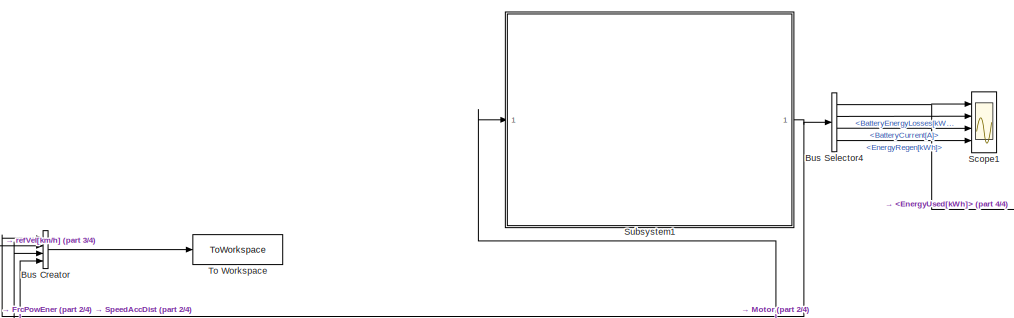
[diagram: root canvas - part 1/4, top center region]
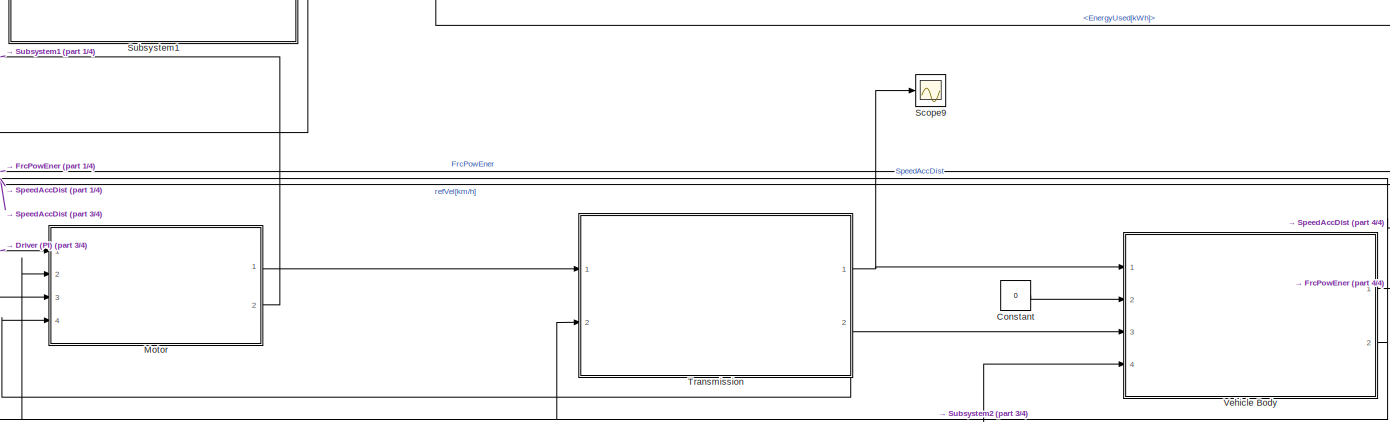
[diagram: root canvas - part 2/4, central region]
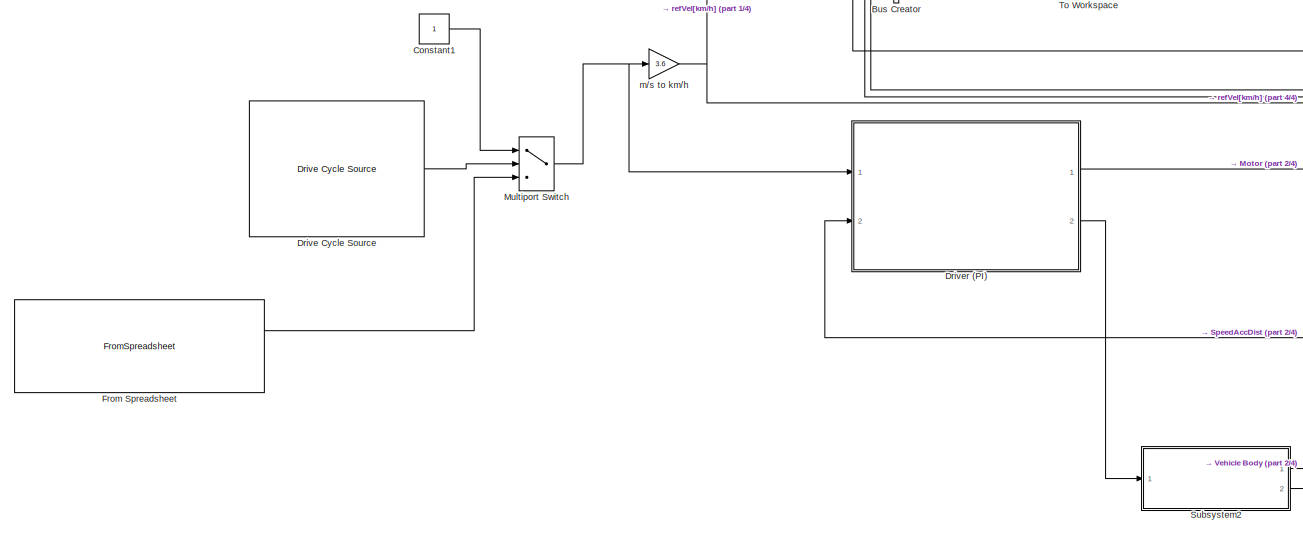
[diagram: root canvas - part 3/4, bottom left region]
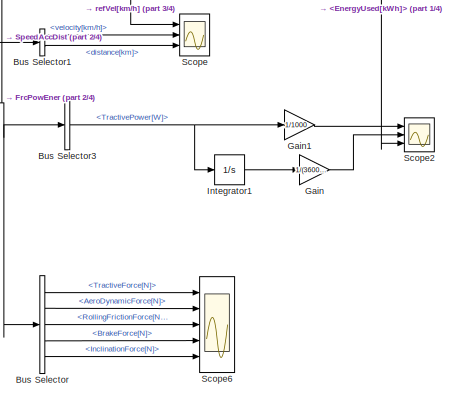
[diagram: root canvas - part 4/4, bottom right region]
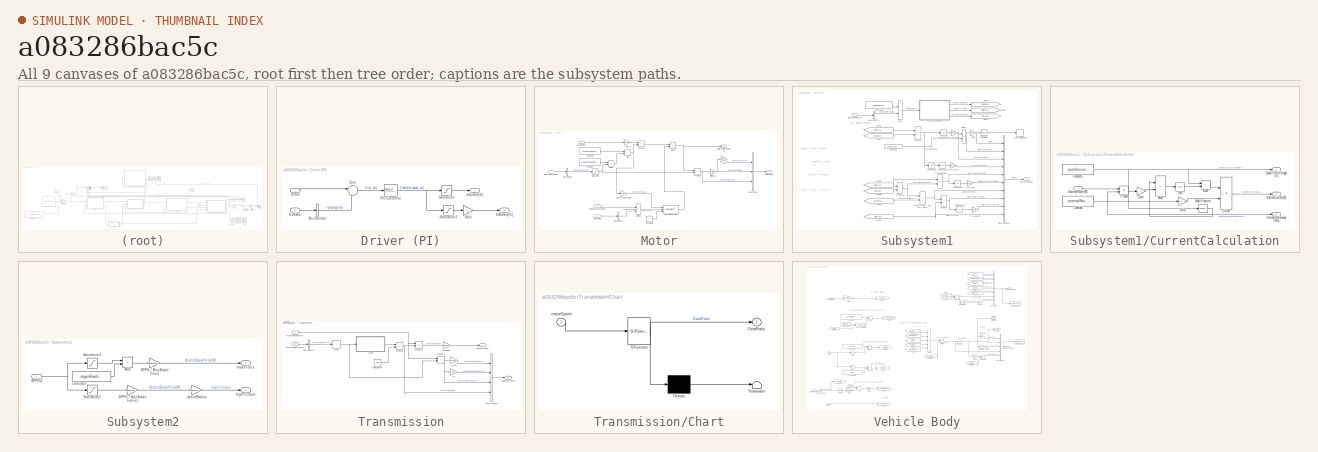
[diagram: thumbnail index - all 9 canvases of the model, root first then tree order]
MODEL slx_a083286bac5c
KIND model
CONFIG AbsTol = auto
CONFIG EnableMultiTasking = off
CONFIG FixedStep = 0.5
CONFIG MaxStep = auto
CONFIG MinStep = auto
CONFIG RelTol = 1e-3
CONFIG SampleTimeConstraint = Unconstrained
CONFIG SolverName = VariableStepAuto
CONFIG StartTime = 0.0
CONFIG StopTime = 600
WORKSPACE source: mxarray member
WORKSPACE AccessoryLoad = 0
WORKSPACE Af = 1.8
WORKSPACE C0 = 0.02
WORKSPACE Cd = 0.48
WORKSPACE airDensity = 1.225
WORKSPACE beta = 0
WORKSPACE energyCapacity = 30
WORKSPACE g = 9.81
WORKSPACE gearboxEfficiency = 90
WORKSPACE internalResistance = 0.05
WORKSPACE m = 840
WORKSPACE maxBrakeForce = 2000
WORKSPACE motorEfficiency = 90
WORKSPACE motorMaxPower = 40000
WORKSPACE motorMaxTorque = 83
WORKSPACE openCircuitVoltage = 140
WORKSPACE regenFraction = 1
WORKSPACE wheelRadius = 0.29
WORKSPACE windVel = 0
BLOCK [BusCreator] Bus Creator
  DisplayOption = bar
  InheritFromInputs = on
  Inputs = 4
  Ports = [4, 1]
BLOCK [BusSelector] Bus Selector
  OutputSignals = TractiveForce[N],AeroDynamicForce[N],RollingFrictionForce[N],BrakeForce[N],InclinationForce[N]
  Ports = [1, 5]
BLOCK [BusSelector] Bus Selector1
  OutputSignals = velocity[km/h],distance[km]
  Ports = [1, 2]
BLOCK [BusSelector] Bus Selector3
  OutputSignals = TractivePower[W]
  Ports = [1, 1]
BLOCK [BusSelector] Bus Selector4
  OutputSignals = EnergyUsed[kWh],BatteryEnergyLosses[kWh],BatteryCurrent[A],EnergyRegen[kWh]
  Ports = [1, 4]
BLOCK [Constant] Constant
  Value = 0
BLOCK [Constant] Constant1
BLOCK [Reference] Drive Cycle Source  REF=autolibshared/Drive Cycle Source
  AttributesFormatString = %<cycleVar> (%<tfinal>)
  Ports = [0, 1]
  SourceBlock = autolibshared/Drive Cycle Source
  SourceProductBaseCode = PW,MT,UV,VE,VP
  SourceType = Drive Cycle Source
BLOCK [SubSystem] Driver (PI)
  Ports = [2, 2]
  RequestExecContextInheritance = off
BLOCK [BusSelector] Driver (PI)/Bus Selector
  OutputSignals = velocity[m/s]
  Ports = [1, 1]
BLOCK [Gain] Driver (PI)/Gain
  Gain = -1
BLOCK [Reference] Driver (PI)/PID Controller  REF=pid_lib/PID Controller
  Ports = [1, 1]
  SourceBlock = pid_lib/PID Controller
  SourceProductBaseCode = SL
  SourceType = PID 1dof
BLOCK [Saturate] Driver (PI)/Saturation
  LowerLimit = 0
  UpperLimit = 100
BLOCK [Saturate] Driver (PI)/Saturation1
  LowerLimit = -100
  UpperLimit = 0
BLOCK [Sum] Driver (PI)/Sum
  Inputs = |+-
  Ports = [2, 1]
BLOCK [Outport] Driver (PI)/accCmnd[%]
BLOCK [Outport] Driver (PI)/brkCmnd[%]
  Port = 2
BLOCK [Inport] Driver (PI)/fedbkVel
  Port = 2
BLOCK [Inport] Driver (PI)/refVel
BLOCK [FromSpreadsheet] From Spreadsheet
  ExtrapolationAfterLastDataPoint = Hold last value
  FileName = SpeedInputDrivecyle.xlsx
  Ports = [0, 2]
  SheetName = Sheet2
BLOCK [Gain] Gain
  Gain = 1/(3600*1000)
BLOCK [Gain] Gain1
  Gain = 1/1000
BLOCK [Integrator] Integrator1
  Ports = [1, 1]
BLOCK [SubSystem] Motor
  Ports = [4, 2]
  RequestExecContextInheritance = off
BLOCK [Gain] Motor/% to 0-1
  Gain = 1/100
BLOCK [Gain] Motor/1-eff
  Gain = (100-motorEfficiency)/100
BLOCK [BusCreator] Motor/Bus Creator
  DisplayOption = bar
  InheritFromInputs = on
  Inputs = 3
  Ports = [3, 1]
BLOCK [BusSelector] Motor/Bus Selector
  OutputSignals = motorSpeed[rad/s]
  Ports = [1, 1]
BLOCK [BusSelector] Motor/Bus Selector1
  OutputSignals = outputGearRatio
  Ports = [1, 1]
BLOCK [Constant] Motor/Constant
  Value = motorMaxPower
BLOCK [Constant] Motor/Constant1
  Value = motorMaxTorque
BLOCK [Constant] Motor/Constant2
  Value = 0
BLOCK [Product] Motor/Divide
  Inputs = */
  Ports = [2, 1]
BLOCK [Product] Motor/Divide1
  Inputs = */
  Ports = [2, 1]
BLOCK [Inport] Motor/GearRatio
  Port = 4
BLOCK [MinMax] Motor/Min
  Inputs = 2
  Ports = [2, 1]
BLOCK [Sum] Motor/Minus
  IconShape = rectangular
  Inputs = +-
  Ports = [2, 1]
BLOCK [Product] Motor/Product
  Ports = [2, 1]
BLOCK [Product] Motor/Product1
  Ports = [2, 1]
BLOCK [Inport] Motor/RegenBrakeTorque
  Port = 3
BLOCK [Saturate] Motor/Saturation
  LowerLimit = 0.00001
  UpperLimit = inf
BLOCK [Reference] Motor/Saturation Dynamic  REF=simulink/Discontinuities/Saturation
Dynamic
  Ports = [3, 1]
  SourceBlock = simulink/Discontinuities/Saturation\nDynamic
  SourceProductBaseCode = SL
  SourceType = Saturation Dynamic
BLOCK [Inport] Motor/accCmnd[%]
BLOCK [Gain] Motor/efficiency
  Gain = 100/motorEfficiency
BLOCK [Gain] Motor/maxTorqueFraction
  Gain = 0.5
BLOCK [Outport] Motor/motorNetTorque[Nm]
BLOCK [Outport] Motor/motorOutput
  Port = 2
BLOCK [Inport] Motor/motorSpeed[rad//s]
  Port = 2
BLOCK [MultiPortSwitch] Multiport Switch
  InputSameDT = off
  Inputs = 2
  Ports = [3, 1]
  SaturateOnIntegerOverflow = off
BLOCK [Scope] Scope
  Floating = off
  NumInputPorts = 3
  Ports = [3]
  ScopeSpecificationString = Simulink.scopes.TimeScopeBlockCfg('CurrentConfiguration', extmgr.ConfigurationSet(extmgr.Configuration('Core','General UI',true),extmgr.Configuration('Core','Source UI',true),extmgr.Configuration('Sources','WiredSimulink',true),extmgr.Configuration('Visuals','Time Domain',true,'SerializedDisplays',{struct('MinYLimReal','-16.96263','MaxYLimReal','148.32918','YLabelReal','','MinYLimMag','0.00000','M...<+1474ch>
BLOCK [Scope] Scope1
  Floating = off
  NumInputPorts = 4
  Ports = [4]
  ScopeSpecificationString = Simulink.scopes.TimeScopeBlockCfg('CurrentConfiguration', extmgr.ConfigurationSet(extmgr.Configuration('Core','General UI',true),extmgr.Configuration('Core','Source UI',true),extmgr.Configuration('Sources','WiredSimulink',true,'DataLoggingVariableName','ScopeData1'),extmgr.Configuration('Visuals','Time Domain',true,'SerializedDisplays',{struct('MinYLimReal','0.24771','MaxYLimReal','5.66544','YLabe...<+1544ch>
BLOCK [Scope] Scope2
  Floating = off
  NumInputPorts = 3
  Ports = [3]
  ScopeSpecificationString = Simulink.scopes.TimeScopeBlockCfg('CurrentConfiguration', extmgr.ConfigurationSet(extmgr.Configuration('Core','General UI',true),extmgr.Configuration('Core','Source UI',true),extmgr.Configuration('Sources','WiredSimulink',true,'DataLoggingVariableName','ScopeData1'),extmgr.Configuration('Visuals','Time Domain',true,'SerializedDisplays',{struct('MinYLimReal','-40.95','MaxYLimReal','44.55','YLabelRe...<+1452ch>
BLOCK [Scope] Scope6
  Floating = off
  NumInputPorts = 5
  Ports = [5]
  ScopeSpecificationString = Simulink.scopes.TimeScopeBlockCfg('CurrentConfiguration', extmgr.ConfigurationSet(extmgr.Configuration('Core','General UI',true),extmgr.Configuration('Core','Source UI',true),extmgr.Configuration('Sources','WiredSimulink',true,'DataLoggingVariableName','ScopeData6'),extmgr.Configuration('Visuals','Time Domain',true,'SerializedDisplays',{struct('MinYLimReal','-460.65236','MaxYLimReal','4145.87128',...<+1554ch>
BLOCK [Scope] Scope9
  Floating = off
  NumInputPorts = 1
  Ports = [1]
  ScopeSpecificationString = Simulink.scopes.TimeScopeBlockCfg('CurrentConfiguration', extmgr.ConfigurationSet(extmgr.Configuration('Core','General UI',true),extmgr.Configuration('Core','Source UI',true),extmgr.Configuration('Sources','WiredSimulink',true,'DataLoggingVariableName','ScopeData3'),extmgr.Configuration('Visuals','Time Domain',true,'SerializedDisplays',{struct('MinYLimReal','-579.60471','MaxYLimReal','700.79749','...<+1439ch>
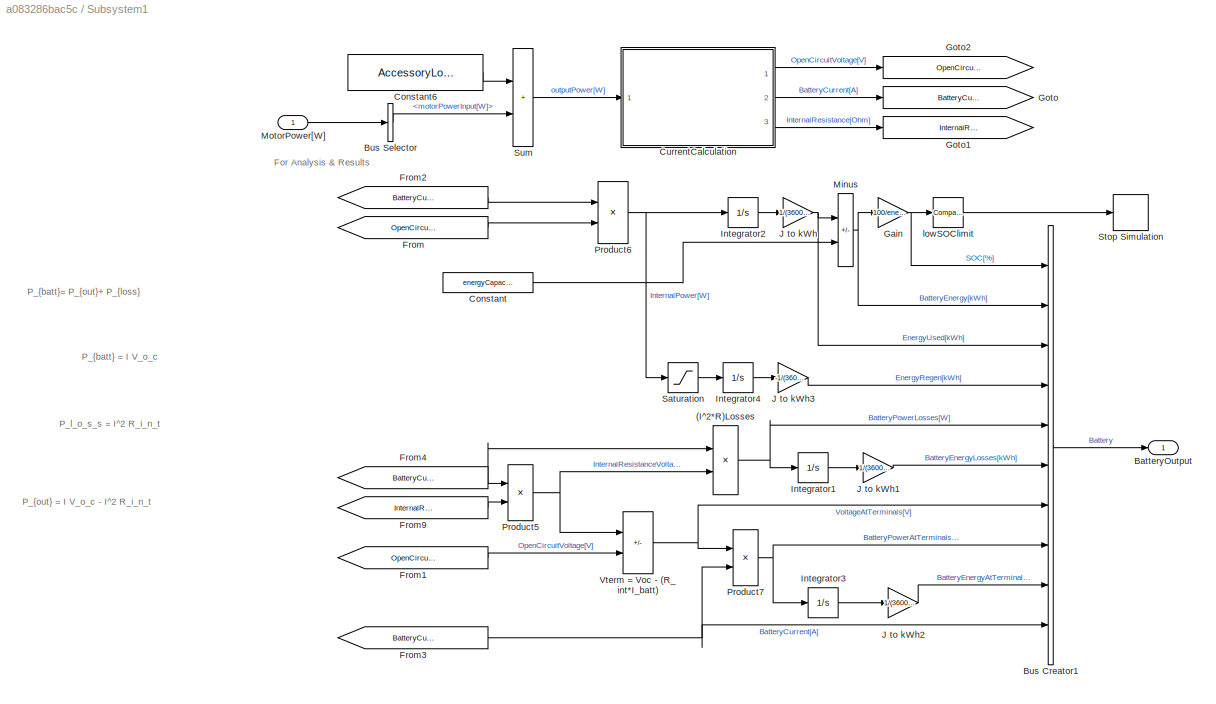
BLOCK [SubSystem] Subsystem1
  Ports = [1, 1]
  RequestExecContextInheritance = off
BLOCK [Product] Subsystem1/(I^2*R)Losses
  NameLocation = top
  Ports = [2, 1]
  RndMeth = Zero
BLOCK [Outport] Subsystem1/BatteryOutput
  VectorParamsAs1DForOutWhenUnconnected = off
BLOCK [BusCreator] Subsystem1/Bus Creator1
  DisplayOption = bar
  InheritFromInputs = on
  Inputs = 10
  Ports = [10, 1]
BLOCK [BusSelector] Subsystem1/Bus Selector
  OutputSignals = motorPowerInput[W]
  Ports = [1, 1]
BLOCK [Constant] Subsystem1/Constant
  Value = energyCapacity
BLOCK [Constant] Subsystem1/Constant6
  Value = AccessoryLoad
BLOCK [SubSystem] Subsystem1/CurrentCalculation
  Ports = [1, 3]
  RequestExecContextInheritance = off
BLOCK [Sum] Subsystem1/CurrentCalculation/Add
  IconShape = rectangular
  Inputs = +-
  Ports = [2, 1]
BLOCK [Sum] Subsystem1/CurrentCalculation/Add1
  IconShape = rectangular
  Inputs = +-
  Ports = [2, 1]
BLOCK [Outport] Subsystem1/CurrentCalculation/BatteryCurrent[A]
  Port = 2
  VectorParamsAs1DForOutWhenUnconnected = off
BLOCK [Inport] Subsystem1/CurrentCalculation/BatteryPower[W]
BLOCK [Constant] Subsystem1/CurrentCalculation/Constant
  Value = internalResistance
BLOCK [Constant] Subsystem1/CurrentCalculation/Constant1
  Value = openCircuitVoltage
BLOCK [Product] Subsystem1/CurrentCalculation/Divide
  Inputs = */
  Ports = [2, 1]
BLOCK [Gain] Subsystem1/CurrentCalculation/Gain
  Gain = 4
BLOCK [Gain] Subsystem1/CurrentCalculation/Gain1
  Gain = 2
BLOCK [Outport] Subsystem1/CurrentCalculation/InternalResistance[Ohm]
  Port = 3
  VectorParamsAs1DForOutWhenUnconnected = off
BLOCK [Math] Subsystem1/CurrentCalculation/Math Function
  Operator = square
  Ports = [1, 1]
  SignedPower = on
BLOCK [Outport] Subsystem1/CurrentCalculation/OpenCircuitVoltage[V]
  VectorParamsAs1DForOutWhenUnconnected = off
BLOCK [Product] Subsystem1/CurrentCalculation/Product
  Ports = [2, 1]
  RndMeth = Zero
BLOCK [Sqrt] Subsystem1/CurrentCalculation/Sqrt
BLOCK [From] Subsystem1/From
  GotoTag = OpenCircuitVoltage_V
BLOCK [From] Subsystem1/From1
  GotoTag = OpenCircuitVoltage_V
BLOCK [From] Subsystem1/From2
  GotoTag = BatteryCurrent_A
BLOCK [From] Subsystem1/From3
  GotoTag = BatteryCurrent_A
BLOCK [From] Subsystem1/From4
  GotoTag = BatteryCurrent_A
BLOCK [From] Subsystem1/From9
  GotoTag = InternalResistance_Ohm
BLOCK [Gain] Subsystem1/Gain
  Gain = 100/energyCapacity
BLOCK [Goto] Subsystem1/Goto
  GotoTag = BatteryCurrent_A
BLOCK [Goto] Subsystem1/Goto1
  GotoTag = InternalResistance_Ohm
BLOCK [Goto] Subsystem1/Goto2
  GotoTag = OpenCircuitVoltage_V
BLOCK [Integrator] Subsystem1/Integrator1
  Ports = [1, 1]
  ZeroCross = off
BLOCK [Integrator] Subsystem1/Integrator2
  Ports = [1, 1]
  ZeroCross = off
BLOCK [Integrator] Subsystem1/Integrator3
  Ports = [1, 1]
BLOCK [Integrator] Subsystem1/Integrator4
  Ports = [1, 1]
  ZeroCross = off
BLOCK [Gain] Subsystem1/J to kWh
  Gain = 1/(3600*1000)
BLOCK [Gain] Subsystem1/J to kWh1
  Gain = 1/(3600*1000)
BLOCK [Gain] Subsystem1/J to kWh2
  Gain = 1/(3600*1000)
BLOCK [Gain] Subsystem1/J to kWh3
  Gain = -1/(3600*1000)
BLOCK [Sum] Subsystem1/Minus
  IconShape = rectangular
  Inputs = -+
  Ports = [2, 1]
BLOCK [Inport] Subsystem1/MotorPower[W]
BLOCK [Product] Subsystem1/Product5
  Ports = [2, 1]
  RndMeth = Zero
BLOCK [Product] Subsystem1/Product6
  Ports = [2, 1]
  RndMeth = Zero
BLOCK [Product] Subsystem1/Product7
  Ports = [2, 1]
  RndMeth = Zero
BLOCK [Saturate] Subsystem1/Saturation
  LowerLimit = -inf
  UpperLimit = 0
BLOCK [Stop] Subsystem1/Stop Simulation
BLOCK [Sum] Subsystem1/Sum
  IconShape = rectangular
  Ports = [2, 1]
BLOCK [Sum] Subsystem1/Vterm = Voc - (R_int*I_batt)
  IconShape = rectangular
  Inputs = -+
  Ports = [2, 1]
BLOCK [Reference] Subsystem1/lowSOClimit  REF=simulink/Logic and Bit
Operations/Compare
To Constant
  NameLocation = top
  Ports = [1, 1]
  SourceBlock = simulink/Logic and Bit\nOperations/Compare\nTo Constant
  SourceProductBaseCode = SL
  SourceType = Compare To Constant
BLOCK [SubSystem] Subsystem2
  Ports = [1, 2]
  RequestExecContextInheritance = off
BLOCK [Sum] Subsystem2/Add
  IconShape = rectangular
  Inputs = +-
  Ports = [2, 1]
BLOCK [Gain] Subsystem2/BPP% * MaxBrakeForce
  Gain = maxBrakeForce/(regenFraction*100)
  NameLocation = top
BLOCK [Gain] Subsystem2/BPP% * MaxBrakeForce1
  Gain = maxBrakeForce/(100*regenFraction)
BLOCK [Inport] Subsystem2/BPP[%]
BLOCK [Constant] Subsystem2/Constant
  Value = regenFraction*100
BLOCK [Saturate] Subsystem2/Saturation1
  LowerLimit = 0
  UpperLimit = regenFraction*100
BLOCK [Saturate] Subsystem2/Saturation2
  LowerLimit = regenFraction*100
  UpperLimit = 100
BLOCK [Outport] Subsystem2/brakeForce
BLOCK [Outport] Subsystem2/regenTorque
  Port = 2
BLOCK [Gain] Subsystem2/wheelRadius
  Gain = wheelRadius
BLOCK [ToWorkspace] To Workspace
  FixptAsFi = on
  MaxDataPoints = inf
  Ports = [1]
  SampleTime = -1
  SaveFormat = Timeseries
  VariableName = simout
BLOCK [SubSystem] Transmission
  Ports = [2, 2]
  RequestExecContextInheritance = off
BLOCK [Gain] Transmission/1-eff
  Gain = (100-gearboxEfficiency)/100
BLOCK [BusCreator] Transmission/Bus Creator
  DisplayOption = bar
  InheritFromInputs = on
  Inputs = 4
  Ports = [4, 1]
BLOCK [BusSelector] Transmission/Bus Selector
  OutputSignals = motorSpeed[rad/s]
  Ports = [1, 1]
BLOCK [SubSystem] Transmission/Chart
  ErrorFcn = Stateflow.Translate.translate
  PermitHierarchicalResolution = ExplicitOnly
  Ports = [1, 1]
  RequestExecContextInheritance = off
  SFBlockType = Chart
  TreatAsAtomicUnit = on
BLOCK [Demux] Transmission/Chart/ Demux 
  Outputs = 1
  Ports = [1, 1]
BLOCK [S-Function] Transmission/Chart/ SFunction 
  EnableBusSupport = on
  FunctionName = sf_sfun
  PortCounts = [1 2]
  Ports = [1, 2]
  SFcnIsStateOwnerBlock = off
  SFunctionDeploymentMode = off
  Tag = Stateflow S-Function 3
BLOCK [Terminator] Transmission/Chart/ Terminator 
BLOCK [Outport] Transmission/Chart/GearRatio
BLOCK [Inport] Transmission/Chart/motorSpeed
BLOCK [Delay] Transmission/Delay
  DelayLength = 1
  InitialCondition = 0.0001
  InputPortMap = u0
  Ports = [1, 1]
BLOCK [Product] Transmission/Product
  Ports = [2, 1]
BLOCK [Product] Transmission/Product1
  Ports = [2, 1]
BLOCK [Product] Transmission/Product2
  Ports = [2, 1]
BLOCK [Constant] Transmission/driveAxleGR
  Value = 3.88
BLOCK [Gain] Transmission/eff
  Gain = gearboxEfficiency
BLOCK [Gain] Transmission/efficiency
  Gain = gearboxEfficiency/100
BLOCK [Outport] Transmission/gearboxOutput
  Port = 2
BLOCK [Inport] Transmission/motorSpeed[rad//s]
  Port = 2
BLOCK [Inport] Transmission/motorTorque[Nm]
BLOCK [Outport] Transmission/outputTorque
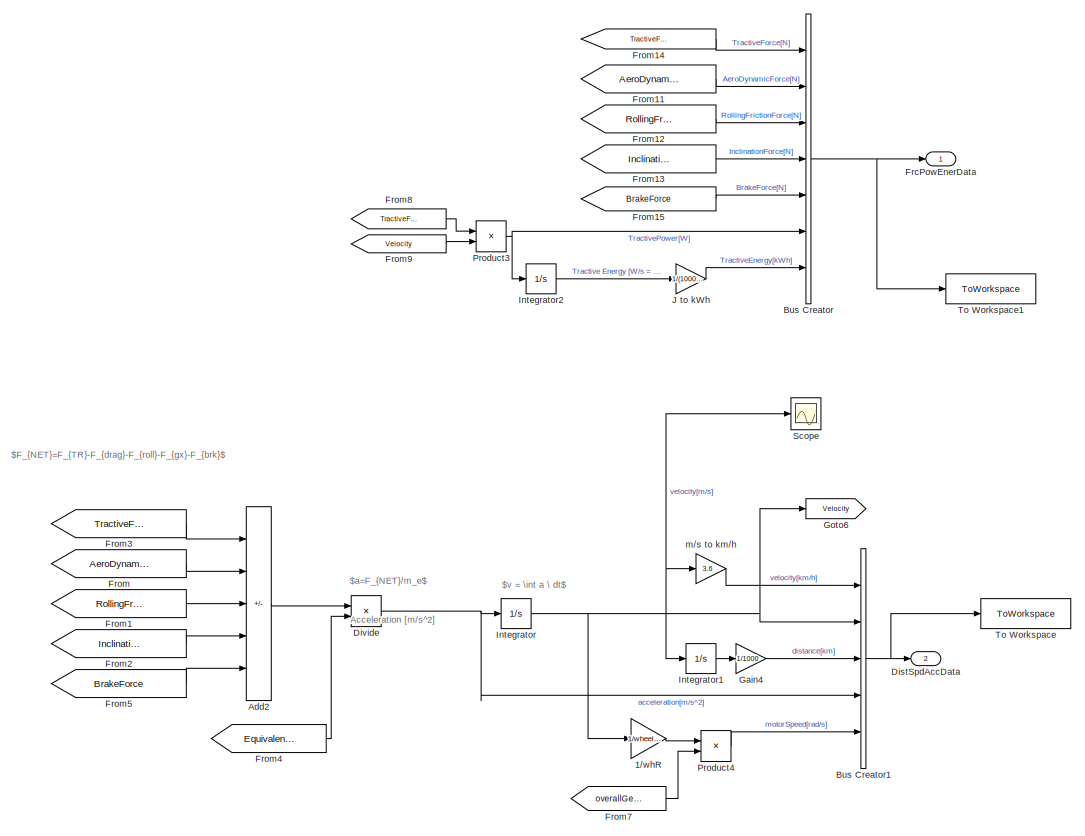
[diagram: Vehicle Body - part 1/2, middle right region]
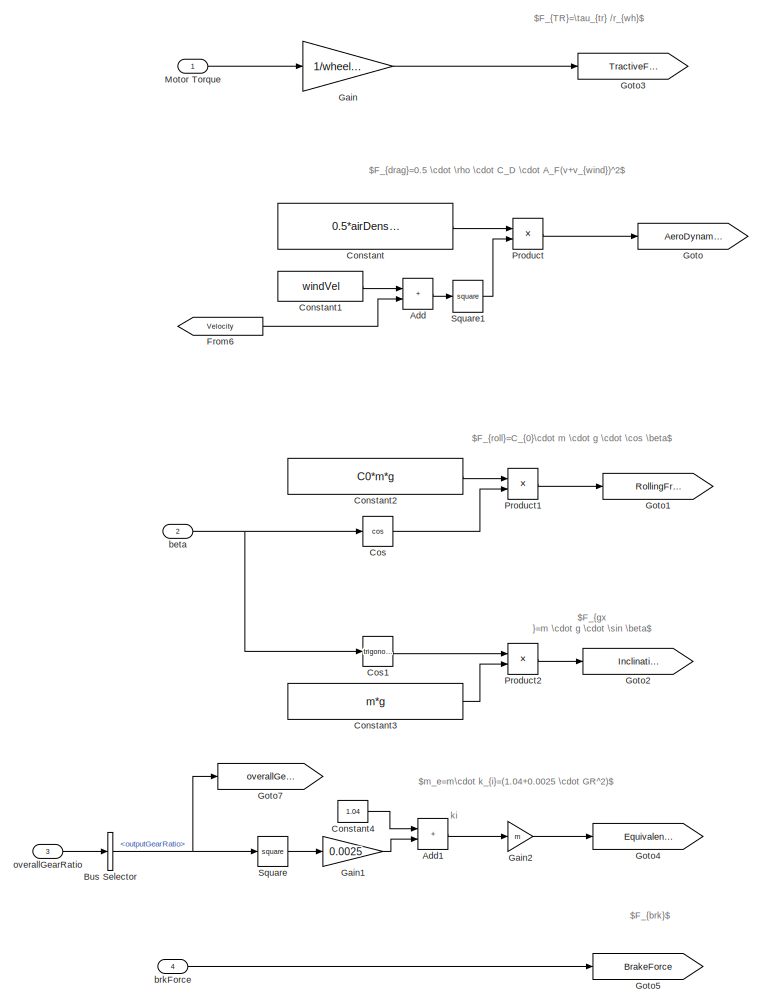
[diagram: Vehicle Body - part 2/2, left side, full height]
BLOCK [SubSystem] Vehicle Body
  Ports = [4, 2]
  RequestExecContextInheritance = off
BLOCK [Gain] Vehicle Body/1//whR
  Gain = 1/wheelRadius
BLOCK [Sum] Vehicle Body/Add
  IconShape = rectangular
  Ports = [2, 1]
BLOCK [Sum] Vehicle Body/Add1
  IconShape = rectangular
  Ports = [2, 1]
BLOCK [Sum] Vehicle Body/Add2
  IconShape = rectangular
  Inputs = +----
  Ports = [5, 1]
BLOCK [BusCreator] Vehicle Body/Bus Creator
  DisplayOption = bar
  InheritFromInputs = on
  Inputs = 7
  Ports = [7, 1]
BLOCK [BusCreator] Vehicle Body/Bus Creator1
  DisplayOption = bar
  InheritFromInputs = on
  Inputs = 5
  Ports = [5, 1]
BLOCK [BusSelector] Vehicle Body/Bus Selector
  OutputSignals = outputGearRatio
  Ports = [1, 1]
BLOCK [Constant] Vehicle Body/Constant
  Value = 0.5*airDensity*Cd*Af
BLOCK [Constant] Vehicle Body/Constant1
  Value = windVel
BLOCK [Constant] Vehicle Body/Constant2
  Value = C0*m*g
BLOCK [Constant] Vehicle Body/Constant3
  Value = m*g
BLOCK [Constant] Vehicle Body/Constant4
  Value = 1.04
BLOCK [Trigonometry] Vehicle Body/Cos
  Operator = cos
  Ports = [1, 1]
BLOCK [Trigonometry] Vehicle Body/Cos1
  Ports = [1, 1]
BLOCK [Outport] Vehicle Body/DistSpdAccData
  Port = 2
BLOCK [Product] Vehicle Body/Divide
  Inputs = */
  Ports = [2, 1]
BLOCK [Outport] Vehicle Body/FrcPowEnerData
BLOCK [From] Vehicle Body/From
  GotoTag = AeroDynamicForce
BLOCK [From] Vehicle Body/From1
  GotoTag = RollingFrictionForce
BLOCK [From] Vehicle Body/From11
  GotoTag = AeroDynamicForce
BLOCK [From] Vehicle Body/From12
  GotoTag = RollingFrictionForce
BLOCK [From] Vehicle Body/From13
  GotoTag = InclinationForce
BLOCK [From] Vehicle Body/From14
  GotoTag = TractiveForce
BLOCK [From] Vehicle Body/From15
  GotoTag = BrakeForce
BLOCK [From] Vehicle Body/From2
  GotoTag = InclinationForce
BLOCK [From] Vehicle Body/From3
  GotoTag = TractiveForce
BLOCK [From] Vehicle Body/From4
  GotoTag = EquivalentMass
BLOCK [From] Vehicle Body/From5
  GotoTag = BrakeForce
BLOCK [From] Vehicle Body/From6
  GotoTag = Velocity
BLOCK [From] Vehicle Body/From7
  GotoTag = overallGearRatio
BLOCK [From] Vehicle Body/From8
  GotoTag = TractiveForce
BLOCK [From] Vehicle Body/From9
  GotoTag = Velocity
BLOCK [Gain] Vehicle Body/Gain
  Gain = 1/wheelRadius
BLOCK [Gain] Vehicle Body/Gain1
  Gain = 0.0025
BLOCK [Gain] Vehicle Body/Gain2
  Gain = m
BLOCK [Gain] Vehicle Body/Gain4
  Gain = 1/1000
BLOCK [Goto] Vehicle Body/Goto
  GotoTag = AeroDynamicForce
BLOCK [Goto] Vehicle Body/Goto1
  GotoTag = RollingFrictionForce
BLOCK [Goto] Vehicle Body/Goto2
  GotoTag = InclinationForce
BLOCK [Goto] Vehicle Body/Goto3
  GotoTag = TractiveForce
BLOCK [Goto] Vehicle Body/Goto4
  GotoTag = EquivalentMass
BLOCK [Goto] Vehicle Body/Goto5
  GotoTag = BrakeForce
BLOCK [Goto] Vehicle Body/Goto6
  GotoTag = Velocity
BLOCK [Goto] Vehicle Body/Goto7
  GotoTag = overallGearRatio
BLOCK [Integrator] Vehicle Body/Integrator
  Ports = [1, 1]
BLOCK [Integrator] Vehicle Body/Integrator1
  Ports = [1, 1]
BLOCK [Integrator] Vehicle Body/Integrator2
  Ports = [1, 1]
BLOCK [Gain] Vehicle Body/J to kWh
  Gain = 1/(1000*3600)
BLOCK [Inport] Vehicle Body/Motor Torque
BLOCK [Product] Vehicle Body/Product
  Ports = [2, 1]
BLOCK [Product] Vehicle Body/Product1
  Ports = [2, 1]
BLOCK [Product] Vehicle Body/Product2
  Ports = [2, 1]
BLOCK [Product] Vehicle Body/Product3
  Ports = [2, 1]
BLOCK [Product] Vehicle Body/Product4
  Ports = [2, 1]
BLOCK [Scope] Vehicle Body/Scope
  Floating = off
  NumInputPorts = 1
  Ports = [1]
  ScopeSpecificationString = Simulink.scopes.TimeScopeBlockCfg('CurrentConfiguration', extmgr.ConfigurationSet(extmgr.Configuration('Core','General UI',true),extmgr.Configuration('Core','Source UI',true),extmgr.Configuration('Sources','WiredSimulink',true,'DataLoggingVariableName','ScopeData2'),extmgr.Configuration('Visuals','Time Domain',true,'SerializedDisplays',{struct('MinYLimReal','-3.16275','MaxYLimReal','28.46475','YLa...<+1376ch>
BLOCK [Math] Vehicle Body/Square
  Operator = square
  Ports = [1, 1]
BLOCK [Math] Vehicle Body/Square1
  Operator = square
  Ports = [1, 1]
BLOCK [ToWorkspace] Vehicle Body/To Workspace
  FixptAsFi = on
  MaxDataPoints = inf
  Ports = [1]
  SampleTime = -1
  SaveFormat = Timeseries
  VariableName = DistSpeedAcc
BLOCK [ToWorkspace] Vehicle Body/To Workspace1
  FixptAsFi = on
  MaxDataPoints = inf
  Ports = [1]
  SampleTime = -1
  SaveFormat = Timeseries
  VariableName = FrcPowEner
BLOCK [Inport] Vehicle Body/beta
  Port = 2
BLOCK [Inport] Vehicle Body/brkForce
  Port = 4
BLOCK [Gain] Vehicle Body/m//s to km//h
  Gain = 3.6
  NameLocation = top
BLOCK [Inport] Vehicle Body/overallGearRatio
  Port = 3
BLOCK [Gain] m//s to km//h
  Gain = 3.6
ANNOTATION Subsystem1: P_l_o_s_s = I^2 R_i_n_t
ANNOTATION Subsystem1: For Analysis & Results
ANNOTATION Subsystem1: P_{batt} = I V_o_c
ANNOTATION Subsystem1: P_{batt}= P_{out}+ P_{loss}
ANNOTATION Subsystem1: P_{out} = I V_o_c - I^2 R_i_n_t
ANNOTATION Vehicle Body: $F_{NET}=F_{TR}-F_{drag}-F_{roll}-F_{gx}-F_{brk}$
ANNOTATION Vehicle Body: $F_{TR}=\tau_{tr} /r_{wh}$
ANNOTATION Vehicle Body: $F_{brk}$
ANNOTATION Vehicle Body: $F_{drag}=0.5 \cdot \rho \cdot C_D \cdot A_F(v+v_{wind})^2$
ANNOTATION Vehicle Body: $F_{gx }=m \cdot g \cdot \sin \beta$
ANNOTATION Vehicle Body: $F_{roll}=C_{0}\cdot m \cdot g \cdot \cos \beta$
ANNOTATION Vehicle Body: $a=F_{NET}/m_e$
ANNOTATION Vehicle Body: $m_e=m\cdot k_{i}=(1.04+0.0025 \cdot GR^2)$
ANNOTATION Vehicle Body: $v = \int a \ dt$
ANNOTATION Vehicle Body: Acceleration [m/s^2]
ANNOTATION Vehicle Body: ki
LINE Bus Creator:1 -> To Workspace:1
LINE Bus Selector1:1 -> Scope:2
LINE Bus Selector1:2 -> Scope:3
NET Bus Selector3:1 -> Gain1:1, Integrator1:1
NET Bus Selector4:1 -> Scope1:1, Scope2:3
LINE Bus Selector4:2 -> Scope1:2
LINE Bus Selector4:3 -> Scope1:3
LINE Bus Selector4:4 -> Scope1:4
LINE Bus Selector:1 -> Scope6:1
LINE Bus Selector:2 -> Scope6:2
LINE Bus Selector:3 -> Scope6:3
LINE Bus Selector:4 -> Scope6:4
LINE Bus Selector:5 -> Scope6:5
LINE Constant1:1 -> Multiport Switch:1
LINE Constant:1 -> Vehicle Body:2
LINE Drive Cycle Source:1 -> Multiport Switch:2
LINE Driver (PI)/Bus Selector:1 -> Driver (PI)/Sum:2
LINE Driver (PI)/Gain:1 -> Driver (PI)/brkCmnd[%]:1
NET Driver (PI)/PID Controller:1 -> Driver (PI)/Saturation1:1, Driver (PI)/Saturation:1
LINE Driver (PI)/Saturation1:1 -> Driver (PI)/Gain:1
LINE Driver (PI)/Saturation:1 -> Driver (PI)/accCmnd[%]:1
LINE Driver (PI)/Sum:1 -> Driver (PI)/PID Controller:1
LINE Driver (PI)/fedbkVel:1 -> Driver (PI)/Bus Selector:1
LINE Driver (PI)/refVel:1 -> Driver (PI)/Sum:1
LINE Driver (PI):1 -> Motor:1
LINE Driver (PI):2 -> Subsystem2:1
LINE From Spreadsheet:1 -> Multiport Switch:3
LINE Gain1:1 -> Scope2:1
LINE Gain:1 -> Scope2:2
LINE Integrator1:1 -> Gain:1
LINE Motor/% to 0-1:1 -> Motor/Product:1
LINE Motor/1-eff:1 -> Motor/Bus Creator:1
LINE Motor/Bus Creator:1 -> Motor/motorOutput:1
LINE Motor/Bus Selector1:1 -> Motor/Divide1:2
LINE Motor/Bus Selector:1 -> Motor/Saturation:1
LINE Motor/Constant1:1 -> Motor/Min:1
LINE Motor/Constant2:1 -> Motor/Saturation Dynamic:3
LINE Motor/Constant:1 -> Motor/Divide:1
LINE Motor/Divide1:1 -> Motor/Saturation Dynamic:2
LINE Motor/Divide:1 -> Motor/Min:2
LINE Motor/GearRatio:1 -> Motor/Bus Selector1:1
NET Motor/Min:1 -> Motor/Product:2, Motor/maxTorqueFraction:1
NET Motor/Minus:1 -> Motor/Product1:1, Motor/motorNetTorque[Nm]:1
NET Motor/Product1:1 -> Motor/Bus Creator:3, Motor/efficiency:1
LINE Motor/Product:1 -> Motor/Minus:1
LINE Motor/RegenBrakeTorque:1 -> Motor/Divide1:1
LINE Motor/Saturation Dynamic:1 -> Motor/Minus:2
NET Motor/Saturation:1 -> Motor/Divide:2, Motor/Product1:2
LINE Motor/accCmnd[%]:1 -> Motor/% to 0-1:1
NET Motor/efficiency:1 -> Motor/1-eff:1, Motor/Bus Creator:2
LINE Motor/maxTorqueFraction:1 -> Motor/Saturation Dynamic:1
LINE Motor/motorSpeed[rad//s]:1 -> Motor/Bus Selector:1
LINE Motor:1 -> Transmission:1
LINE Motor:2 -> Subsystem1:1
NET Multiport Switch:1 -> Driver (PI):1, m//s to km//h:1
NET Subsystem1/(I^2*R)Losses:1 -> Subsystem1/Bus Creator1:5, Subsystem1/Integrator1:1
LINE Subsystem1/Bus Creator1:1 -> Subsystem1/BatteryOutput:1
LINE Subsystem1/Bus Selector:1 -> Subsystem1/Sum:2
LINE Subsystem1/Constant6:1 -> Subsystem1/Sum:1
LINE Subsystem1/Constant:1 -> Subsystem1/Minus:2
LINE Subsystem1/CurrentCalculation/Add1:1 -> Subsystem1/CurrentCalculation/Divide:1
LINE Subsystem1/CurrentCalculation/Add:1 -> Subsystem1/CurrentCalculation/Sqrt:1
LINE Subsystem1/CurrentCalculation/BatteryPower[W]:1 -> Subsystem1/CurrentCalculation/Product:1
NET Subsystem1/CurrentCalculation/Constant1:1 -> Subsystem1/CurrentCalculation/Add1:1, Subsystem1/CurrentCalculation/Math Function:1, Subsystem1/CurrentCalculation/OpenCircuitVoltage[V]:1
NET Subsystem1/CurrentCalculation/Constant:1 -> Subsystem1/CurrentCalculation/Gain1:1, Subsystem1/CurrentCalculation/InternalResistance[Ohm]:1, Subsystem1/CurrentCalculation/Product:2
LINE Subsystem1/CurrentCalculation/Divide:1 -> Subsystem1/CurrentCalculation/BatteryCurrent[A]:1
LINE Subsystem1/CurrentCalculation/Gain1:1 -> Subsystem1/CurrentCalculation/Divide:2
LINE Subsystem1/CurrentCalculation/Gain:1 -> Subsystem1/CurrentCalculation/Add:2
LINE Subsystem1/CurrentCalculation/Math Function:1 -> Subsystem1/CurrentCalculation/Add:1
LINE Subsystem1/CurrentCalculation/Product:1 -> Subsystem1/CurrentCalculation/Gain:1
LINE Subsystem1/CurrentCalculation/Sqrt:1 -> Subsystem1/CurrentCalculation/Add1:2
LINE Subsystem1/CurrentCalculation:1 -> Subsystem1/Goto2:1
LINE Subsystem1/CurrentCalculation:2 -> Subsystem1/Goto:1
LINE Subsystem1/CurrentCalculation:3 -> Subsystem1/Goto1:1
LINE Subsystem1/From1:1 -> Subsystem1/Vterm = Voc - (R_int*I_batt):2
LINE Subsystem1/From2:1 -> Subsystem1/Product6:1
NET Subsystem1/From3:1 -> Subsystem1/Bus Creator1:10, Subsystem1/Product7:2
NET Subsystem1/From4:1 -> Subsystem1/(I^2*R)Losses:1, Subsystem1/Product5:1
LINE Subsystem1/From9:1 -> Subsystem1/Product5:2
LINE Subsystem1/From:1 -> Subsystem1/Product6:2
NET Subsystem1/Gain:1 -> Subsystem1/Bus Creator1:1, Subsystem1/lowSOClimit:1
LINE Subsystem1/Integrator1:1 -> Subsystem1/J to kWh1:1
LINE Subsystem1/Integrator2:1 -> Subsystem1/J to kWh:1
LINE Subsystem1/Integrator3:1 -> Subsystem1/J to kWh2:1
LINE Subsystem1/Integrator4:1 -> Subsystem1/J to kWh3:1
LINE Subsystem1/J to kWh1:1 -> Subsystem1/Bus Creator1:6
LINE Subsystem1/J to kWh2:1 -> Subsystem1/Bus Creator1:9
LINE Subsystem1/J to kWh3:1 -> Subsystem1/Bus Creator1:4
NET Subsystem1/J to kWh:1 -> Subsystem1/Bus Creator1:3, Subsystem1/Minus:1
NET Subsystem1/Minus:1 -> Subsystem1/Bus Creator1:2, Subsystem1/Gain:1
LINE Subsystem1/MotorPower[W]:1 -> Subsystem1/Bus Selector:1
NET Subsystem1/Product5:1 -> Subsystem1/(I^2*R)Losses:2, Subsystem1/Vterm = Voc - (R_int*I_batt):1
NET Subsystem1/Product6:1 -> Subsystem1/Integrator2:1, Subsystem1/Saturation:1
NET Subsystem1/Product7:1 -> Subsystem1/Bus Creator1:8, Subsystem1/Integrator3:1
LINE Subsystem1/Saturation:1 -> Subsystem1/Integrator4:1
LINE Subsystem1/Sum:1 -> Subsystem1/CurrentCalculation:1
NET Subsystem1/Vterm = Voc - (R_int*I_batt):1 -> Subsystem1/Bus Creator1:7, Subsystem1/Product7:1
LINE Subsystem1/lowSOClimit:1 -> Subsystem1/Stop Simulation:1
NET Subsystem1:1 -> Bus Creator:1, Bus Selector4:1
LINE Subsystem2/Add:1 -> Subsystem2/BPP% * MaxBrakeForce:1
LINE Subsystem2/BPP% * MaxBrakeForce1:1 -> Subsystem2/wheelRadius:1
LINE Subsystem2/BPP% * MaxBrakeForce:1 -> Subsystem2/brakeForce:1
NET Subsystem2/BPP[%]:1 -> Subsystem2/Saturation1:1, Subsystem2/Saturation2:1
LINE Subsystem2/Constant:1 -> Subsystem2/Add:2
LINE Subsystem2/Saturation1:1 -> Subsystem2/BPP% * MaxBrakeForce1:1
LINE Subsystem2/Saturation2:1 -> Subsystem2/Add:1
LINE Subsystem2/wheelRadius:1 -> Subsystem2/regenTorque:1
LINE Subsystem2:1 -> Vehicle Body:4
LINE Subsystem2:2 -> Motor:3
LINE Transmission/1-eff:1 -> Transmission/Bus Creator:1
LINE Transmission/Bus Creator:1 -> Transmission/gearboxOutput:1
LINE Transmission/Bus Selector:1 -> Transmission/Delay:1
LINE Transmission/Chart:1 -> Transmission/Product:1
NET Transmission/Delay:1 -> Transmission/Chart:1, Transmission/Product2:2
LINE Transmission/Product1:1 -> Transmission/efficiency:1
NET Transmission/Product2:1 -> Transmission/1-eff:1, Transmission/Bus Creator:3, Transmission/eff:1
NET Transmission/Product:1 -> Transmission/Bus Creator:4, Transmission/Product1:2
LINE Transmission/driveAxleGR:1 -> Transmission/Product:2
LINE Transmission/eff:1 -> Transmission/Bus Creator:2
LINE Transmission/efficiency:1 -> Transmission/outputTorque:1
LINE Transmission/motorSpeed[rad//s]:1 -> Transmission/Bus Selector:1
NET Transmission/motorTorque[Nm]:1 -> Transmission/Product1:1, Transmission/Product2:1
NET Transmission:1 -> Scope9:1, Vehicle Body:1
NET Transmission:2 -> Motor:4, Vehicle Body:3
LINE Vehicle Body/1//whR:1 -> Vehicle Body/Product4:1
LINE Vehicle Body/Add1:1 -> Vehicle Body/Gain2:1
LINE Vehicle Body/Add2:1 -> Vehicle Body/Divide:1
LINE Vehicle Body/Add:1 -> Vehicle Body/Square1:1
NET Vehicle Body/Bus Creator1:1 -> Vehicle Body/DistSpdAccData:1, Vehicle Body/To Workspace:1
NET Vehicle Body/Bus Creator:1 -> Vehicle Body/FrcPowEnerData:1, Vehicle Body/To Workspace1:1
NET Vehicle Body/Bus Selector:1 -> Vehicle Body/Goto7:1, Vehicle Body/Square:1
LINE Vehicle Body/Constant1:1 -> Vehicle Body/Add:1
LINE Vehicle Body/Constant2:1 -> Vehicle Body/Product1:1
LINE Vehicle Body/Constant3:1 -> Vehicle Body/Product2:2
LINE Vehicle Body/Constant4:1 -> Vehicle Body/Add1:1
LINE Vehicle Body/Constant:1 -> Vehicle Body/Product:1
LINE Vehicle Body/Cos1:1 -> Vehicle Body/Product2:1
LINE Vehicle Body/Cos:1 -> Vehicle Body/Product1:2
NET Vehicle Body/Divide:1 -> Vehicle Body/Bus Creator1:4, Vehicle Body/Integrator:1
LINE Vehicle Body/From11:1 -> Vehicle Body/Bus Creator:2
LINE Vehicle Body/From12:1 -> Vehicle Body/Bus Creator:3
LINE Vehicle Body/From13:1 -> Vehicle Body/Bus Creator:4
LINE Vehicle Body/From14:1 -> Vehicle Body/Bus Creator:1
LINE Vehicle Body/From15:1 -> Vehicle Body/Bus Creator:5
LINE Vehicle Body/From1:1 -> Vehicle Body/Add2:3
LINE Vehicle Body/From2:1 -> Vehicle Body/Add2:4
LINE Vehicle Body/From3:1 -> Vehicle Body/Add2:1
LINE Vehicle Body/From4:1 -> Vehicle Body/Divide:2
LINE Vehicle Body/From5:1 -> Vehicle Body/Add2:5
LINE Vehicle Body/From6:1 -> Vehicle Body/Add:2
LINE Vehicle Body/From7:1 -> Vehicle Body/Product4:2
LINE Vehicle Body/From8:1 -> Vehicle Body/Product3:1
LINE Vehicle Body/From9:1 -> Vehicle Body/Product3:2
LINE Vehicle Body/From:1 -> Vehicle Body/Add2:2
LINE Vehicle Body/Gain1:1 -> Vehicle Body/Add1:2
LINE Vehicle Body/Gain2:1 -> Vehicle Body/Goto4:1
LINE Vehicle Body/Gain4:1 -> Vehicle Body/Bus Creator1:3
LINE Vehicle Body/Gain:1 -> Vehicle Body/Goto3:1
LINE Vehicle Body/Integrator1:1 -> Vehicle Body/Gain4:1
LINE Vehicle Body/Integrator2:1 -> Vehicle Body/J to kWh:1
NET Vehicle Body/Integrator:1 -> Vehicle Body/1//whR:1, Vehicle Body/Bus Creator1:2, Vehicle Body/Goto6:1, Vehicle Body/Integrator1:1, Vehicle Body/Scope:1, Vehicle Body/m//s to km//h:1
LINE Vehicle Body/J to kWh:1 -> Vehicle Body/Bus Creator:7
LINE Vehicle Body/Motor Torque:1 -> Vehicle Body/Gain:1
LINE Vehicle Body/Product1:1 -> Vehicle Body/Goto1:1
LINE Vehicle Body/Product2:1 -> Vehicle Body/Goto2:1
NET Vehicle Body/Product3:1 -> Vehicle Body/Bus Creator:6, Vehicle Body/Integrator2:1
LINE Vehicle Body/Product4:1 -> Vehicle Body/Bus Creator1:5
LINE Vehicle Body/Product:1 -> Vehicle Body/Goto:1
LINE Vehicle Body/Square1:1 -> Vehicle Body/Product:2
LINE Vehicle Body/Square:1 -> Vehicle Body/Gain1:1
NET Vehicle Body/beta:1 -> Vehicle Body/Cos1:1, Vehicle Body/Cos:1
LINE Vehicle Body/brkForce:1 -> Vehicle Body/Goto5:1
LINE Vehicle Body/m//s to km//h:1 -> Vehicle Body/Bus Creator1:1
LINE Vehicle Body/overallGearRatio:1 -> Vehicle Body/Bus Selector:1
NET Vehicle Body:1 -> Bus Creator:4, Bus Selector3:1, Bus Selector:1
NET Vehicle Body:2 -> Bus Creator:3, Bus Selector1:1, Driver (PI):2, Motor:2, Transmission:2
NET m//s to km//h:1 -> Bus Creator:2, Scope:1
note: NET lines group one-source signal fan-out (src -> all destinations, sorted); 1:1 wires keep LINE
CHART Transmission/Chart states=5 transitions=9
  STATE_LABEL 'FIRST\nentry:\nGearRatio=3.116;'
  STATE_LABEL 'SECOND\nentry:\nGearRatio=1.882;'
  STATE_LABEL 'THIRD\nentry:\nGearRatio=1.296;'
  STATE_LABEL 'FOURTH\nentry:\nGearRatio=0.972;'
  STATE_LABEL 'FIFTH\nentry:\nGearRatio=0.738;'
CHART  states=0 transitions=0
